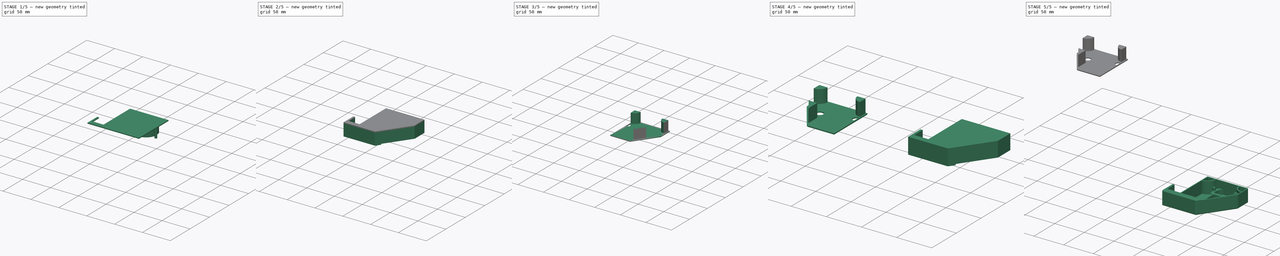
[diagram: build sequence overview — one tinted view per stage of 5, left to right]
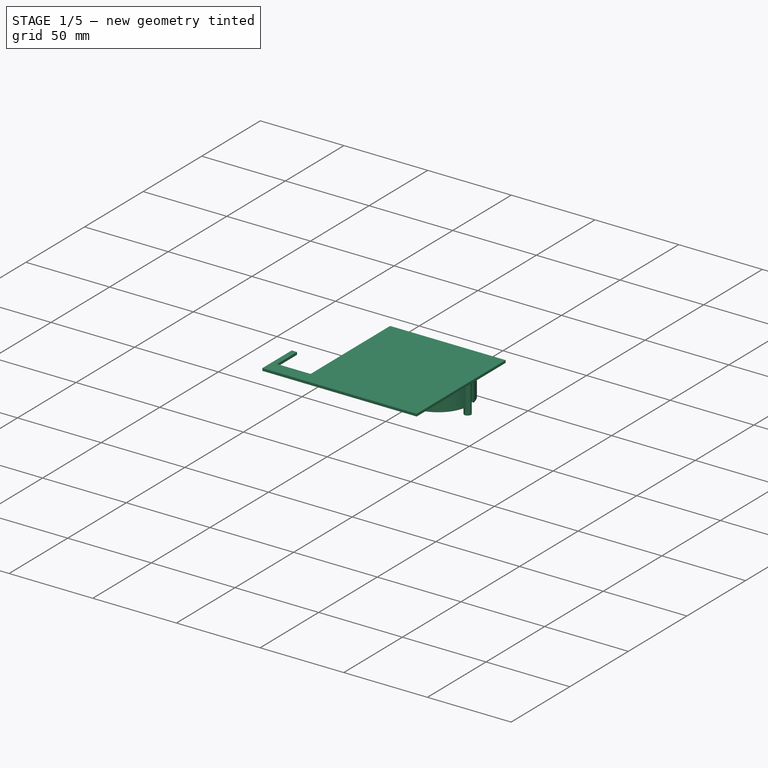
[diagram: stage 1 of 5 — iso view after this stage's code; geometry added in this stage tinted green]
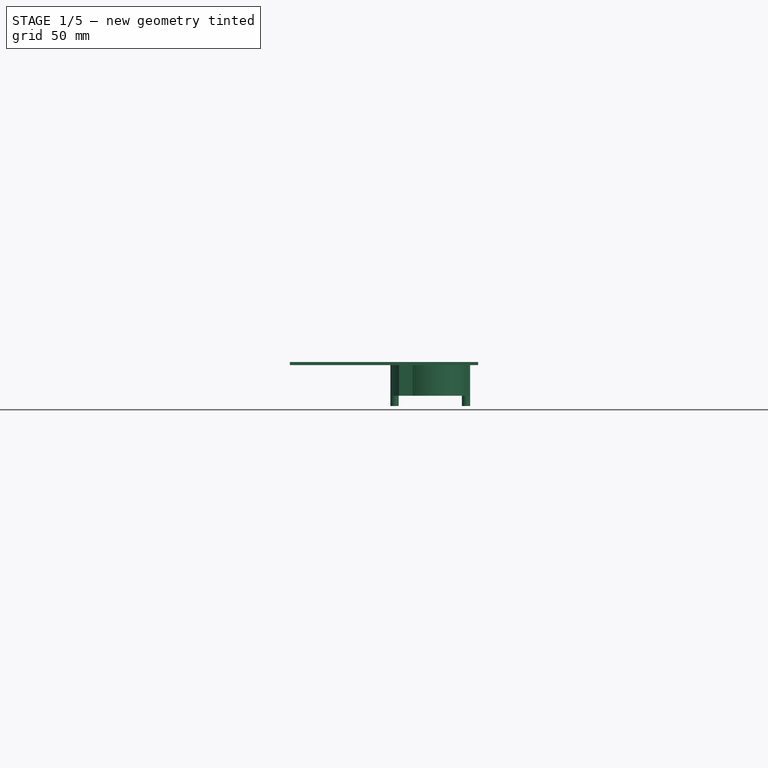
[diagram: stage 1 of 5 — front view after this stage's code; geometry added in this stage tinted green]
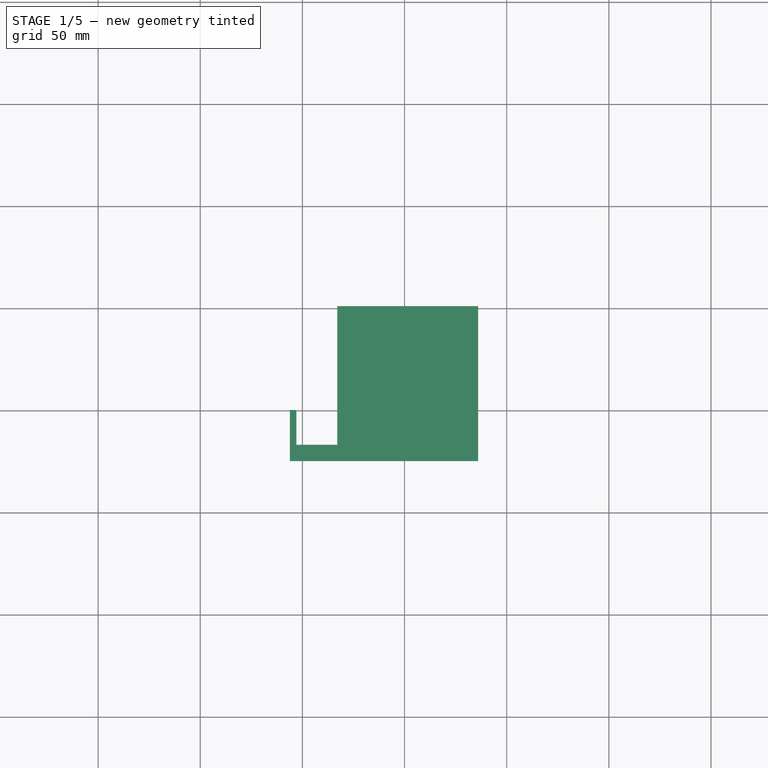
[diagram: stage 1 of 5 — top view after this stage's code; geometry added in this stage tinted green]
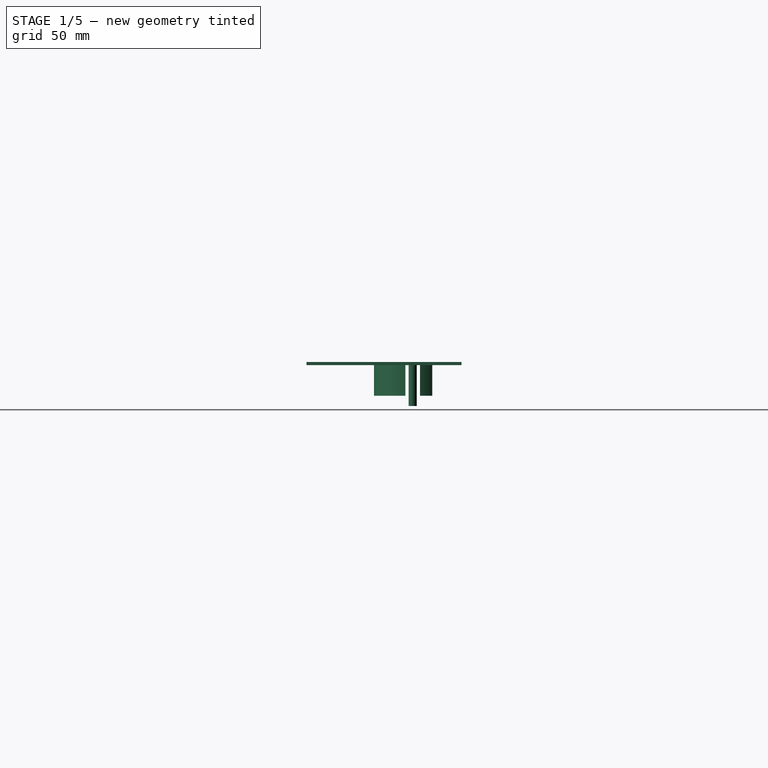
[diagram: stage 1 of 5 — right view after this stage's code; geometry added in this stage tinted green]
FCSTD DOCUMENT  (FreeCAD 0.21R33771 (Git))
Label: uln2003 + 28byj-48 box
License: All rights reserved
LicenseURL: http://en.wikipedia.org/wiki/All_rights_reserved
objects: Sketcher::SketchObject×14, PartDesign::Pad×12, PartDesign::Pocket×4, PartDesign::Chamfer×4, PartDesign::ShapeBinder×2, PartDesign::Body×2, Part::Mirroring×2, PartDesign::Plane×1
note: 61 computed .brp shape members not serialized (recipe doc carries the construction recipe); baked Part::Feature solids carry a one-line shape summary decoded from their .brp

FEATURE [Sketcher::SketchObject] Sketch
  FullyConstrained = false
  MapMode = 5
  Support = -> [XY_Plane]
  sketch-geometry (12):
    g0: LineSegment StartX=47.0355 StartY=0 StartZ=0 EndX=47.0355 EndY=-17 EndZ=0
    g1: LineSegment StartX=47.0355 StartY=-17 StartZ=0 EndX=67.0355 EndY=-17 EndZ=0
    g2: LineSegment StartX=67.0355 StartY=-17 StartZ=0 EndX=67.0355 EndY=50.8746 EndZ=0
    g3: LineSegment StartX=67.0355 StartY=50.8746 StartZ=0 EndX=136.036 EndY=50.8746 EndZ=0
    g4: LineSegment StartX=136.036 StartY=50.8746 StartZ=0 EndX=136.036 EndY=-25 EndZ=0
    g5: LineSegment StartX=136.036 StartY=-25 StartZ=0 EndX=43.8355 EndY=-25 EndZ=0
    g6: LineSegment StartX=43.8355 StartY=-25 StartZ=0 EndX=43.8355 EndY=0 EndZ=0
    g7: LineSegment StartX=43.8355 StartY=0 StartZ=0 EndX=47.0355 EndY=0 EndZ=0
    g8: GeomPoint X=95.0755 Y=27.7746 Z=0
    g9: Circle CenterX=95.0756 CenterY=28.5746 CenterZ=0 NormalX=0 NormalY=0 NormalZ=1 AngleXU=0 Radius=0.8
    g10: GeomPoint X=95.0755 Y=29.3746 Z=0
    g11: LineSegment StartX=95.0755 StartY=29.3746 StartZ=0 EndX=95.0755 EndY=27.7746 EndZ=0
  constraints (32):
    c: PointOnObject(g0,g-1)
    c: Vertical(g0)
    c: Coincident(g0,g1)
    c: Horizontal(g1)
    c: Coincident(g1,g2)
    c: Vertical(g2)
    c: Coincident(g2,g3)
    c: Horizontal(g3)
    c: Coincident(g3,g4)
    c: Vertical(g4)
    c: Coincident(g4,g5)
    c: Horizontal(g5)
    c: Coincident(g5,g6)
    c: PointOnObject(g6,g-1)
    c: Vertical(g6)
    c: Coincident(g6,g7)
    c: Coincident(g7,g0)
    c: Distance(g7) = 3.2
    c: Distance(g0) = 17
    c: Distance(g1) = 20
    c: Distance(g1,g5) = 8
    c: Distance(g3) = 69
    c: Distance(g1,g8) = 52.83
    c: Distance(g8,g2) = 28.04
    c: Diameter(g9) = 1.6
    c: PointOnObject(g8,g9)
    c: PointOnObject(g10,g9)
    c: Vertical(g10,g8)
    c: Coincident(g11,g10)
    c: Coincident(g11,g8)
    c: Distance(g11) = 1.6
    c: Distance(g10,g3) = 21.5
FEATURE [PartDesign::Pad] Pad
  Direction = (0,0,1)
  Length = 1.5
  Length2 = 10
  Profile = -> Sketch
  ReferenceAxis = -> Sketch [N_Axis]
  Type = 0
FEATURE [Sketcher::SketchObject] Sketch002
  ExternalGeometry = -> [Pad]
  FullyConstrained = true
  MapMode = 5
  Placement = pos=(0,0,0) rot=(1,0,0;3.14159rad)
  Support = -> [Pad]
  sketch-geometry (5):
    g0: Circle CenterX=95.0755 CenterY=-26.9746 CenterZ=0 NormalX=0 NormalY=0 NormalZ=1 AngleXU=0 Radius=0.8
    g1: LineSegment StartX=95.0755 StartY=-27.7746 StartZ=0 EndX=95.0755 EndY=-26.1746 EndZ=0
    g2: Circle CenterX=95.0755 CenterY=-26.9746 CenterZ=0 NormalX=0 NormalY=0 NormalZ=1 AngleXU=0 Radius=2
    g3: LineSegment StartX=95.0755 StartY=-26.9746 StartZ=0 EndX=130.076 EndY=-26.9746 EndZ=0
    g4: Circle CenterX=130.076 CenterY=-26.9746 CenterZ=0 NormalX=0 NormalY=0 NormalZ=1 AngleXU=0 Radius=2
  constraints (14):
    c: PointOnObject(g1,g0)
    c: PointOnObject(g1,g0)
    c: PointOnObject(g0,g1)
    c: Vertical(g1)
    c: Diameter(g0) = 1.6
    c: Distance(g-3,g1) = 52.83
    c: Distance(g1,g-4) = 28.04
    c: Coincident(g2,g0)
    c: Diameter(g2) = 4
    c: Coincident(g3,g2)
    c: Distance(g3) = 35
    c: Horizontal(g3)
    c: Coincident(g4,g3)
    c: Equal(g2,g4)
FEATURE [PartDesign::Pad] Pad001
  BaseFeature = -> Pad
  Direction = (0,0,-1)
  Length = 20
  Length2 = 10
  Profile = -> Sketch002
  ReferenceAxis = -> Sketch002 [N_Axis]
  Type = 0
FEATURE [Sketcher::SketchObject] Sketch003
  ExternalGeometry = -> [Pad001]
  FullyConstrained = false
  MapMode = 5
  Placement = pos=(0,0,0) rot=(1,0,0;3.14159rad)
  Support = -> [Pad001]
  sketch-geometry (16):
    g0: ArcOfCircle CenterX=112.576 CenterY=-26.9746 CenterZ=0 NormalX=0 NormalY=0 NormalZ=1 AngleXU=0 Radius=14.075 StartAngle=5.53504 EndAngle=6.02638
    g1: LineSegment StartX=93.9621 StartY=-23.3996 StartZ=0 EndX=98.9621 EndY=-23.3996 EndZ=0
    g2: LineSegment StartX=93.9621 StartY=-30.5496 StartZ=0 EndX=98.9621 EndY=-30.5496 EndZ=0
    g3: GeomPoint X=94.6704 Y=-23.3996 Z=0
    g4: GeomPoint X=95.4807 Y=-30.5496 Z=0
    g5: GeomPoint X=98.9621 Y=-23.3996 Z=0
    g6: LineSegment StartX=95.504 StartY=-36.5496 StartZ=0 EndX=129.54 EndY=-36.5496 EndZ=0
    g7: LineSegment StartX=126.189 StartY=-23.3996 StartZ=0 EndX=131.189 EndY=-23.3996 EndZ=0
    g8: LineSegment StartX=126.189 StartY=-30.5496 StartZ=0 EndX=131.189 EndY=-30.5496 EndZ=0
    g9: ArcOfCircle CenterX=112.576 CenterY=-26.9746 CenterZ=0 NormalX=0 NormalY=0 NormalZ=1 AngleXU=0 Radius=14.075 StartAngle=3.3984 EndAngle=3.88974
    g10: ArcOfCircle CenterX=112.576 CenterY=-26.9746 CenterZ=0 NormalX=0 NormalY=0 NormalZ=1 AngleXU=0 Radius=14.075 StartAngle=0.25681 EndAngle=2.88478
    g11: ArcOfCircle CenterX=112.576 CenterY=-26.9746 CenterZ=0 NormalX=0 NormalY=0 NormalZ=1 AngleXU=0 Radius=18.9536 StartAngle=0.189755 EndAngle=2.95184
    g12: ArcOfCircle CenterX=112.576 CenterY=-26.9746 CenterZ=0 NormalX=0 NormalY=0 NormalZ=1 AngleXU=0 Radius=18.9536 StartAngle=3.33135 EndAngle=3.67118
    g13: ArcOfCircle CenterX=112.576 CenterY=-26.9746 CenterZ=0 NormalX=0 NormalY=0 NormalZ=1 AngleXU=0 Radius=18.9536 StartAngle=5.75359 EndAngle=6.09343
    g14: LineSegment StartX=96.2183 StartY=-36.5496 StartZ=0 EndX=102.259 EndY=-36.5496 EndZ=0
    g15: LineSegment StartX=122.892 StartY=-36.5496 StartZ=0 EndX=128.933 EndY=-36.5496 EndZ=0
  constraints (41):
    c: Diameter(g0) = 28.15
    c: Symmetric(g-3,g-4,g0)
    c: Horizontal(g1)
    c: Horizontal(g2)
    c: Distance(g2,g1) = 7.15
    c: PointOnObject(g3,g1)
    c: Symmetric(g4,g3,g-3)
    c: Symmetric(g2,g7,g0)
    c: Vertical(g1,g2)
    c: PointOnObject(g5,g0)
    c: PointOnObject(g5,g1)
    c: Distance(g5,g1) = 5
    c: Horizontal(g6)
    c: Distance(g8,g6) = 6
    c: PointOnObject(g9,g6)
    c: PointOnObject(g0,g6)
    c: Equal(g0,g9)
    c: Coincident(g10,g1)
    c: Coincident(g9,g2)
    c: Coincident(g0,g9)
    c: Equal(g0,g10)
    c: Coincident(g0,g8)
    c: Coincident(g10,g7)
    c: Coincident(g0,g10)
    c: Horizontal(g8)
    c: Horizontal(g0,g2)
    c: Horizontal(g7)
    c: Equal(g7,g8)
    c: Coincident(g11,g0)
    c: Coincident(g11,g1)
    c: Coincident(g11,g7)
    c: Coincident(g12,g0)
    c: Coincident(g12,g2)
    c: PointOnObject(g12,g6)
    c: Coincident(g13,g0)
    c: Coincident(g13,g8)
    c: PointOnObject(g13,g6)
    c: Coincident(g14,g12)
    c: Coincident(g14,g9)
    c: Coincident(g15,g0)
    c: Coincident(g15,g13)
FEATURE [PartDesign::Pad] Pad002
  BaseFeature = -> Pad001
  Direction = (0,0,-1)
  Length = 15
  Length2 = 10
  Profile = -> Sketch003
  ReferenceAxis = -> Sketch003 [N_Axis]
  Type = 0
FEATURE [Sketcher::SketchObject] Sketch004
  ExternalGeometry = -> [Pad002]
  FullyConstrained = true
  MapMode = 5
  Placement = pos=(0,0,0) rot=(1,0,0;3.14159rad)
  Support = -> [Pad002]
  expr: Constraints[10] = 1.6 mm
  sketch-geometry (9):
    g0: LineSegment StartX=68.6355 StartY=17 StartZ=0 EndX=103.636 EndY=17 EndZ=0
    g1: LineSegment StartX=103.636 StartY=17 StartZ=0 EndX=103.636 EndY=-15.5 EndZ=0
    g2: LineSegment StartX=103.636 StartY=-15.5 StartZ=0 EndX=68.6355 EndY=-15.5 EndZ=0
    g3: LineSegment StartX=68.6355 StartY=-15.5 StartZ=0 EndX=68.6355 EndY=17 EndZ=0
    g4: LineSegment StartX=68.3855 StartY=-15.75 StartZ=0 EndX=68.3855 EndY=17.25 EndZ=0
    g5: LineSegment StartX=68.3855 StartY=17.25 StartZ=0 EndX=103.886 EndY=17.25 EndZ=0
    g6: LineSegment StartX=103.886 StartY=17.25 StartZ=0 EndX=103.886 EndY=-15.75 EndZ=0
    g7: LineSegment StartX=103.886 StartY=-15.75 StartZ=0 EndX=68.3855 EndY=-15.75 EndZ=0
    g8: GeomPoint X=86.1355 Y=0.75 Z=0
  constraints (24):
    c: Coincident(g0,g1)
    c: Coincident(g1,g2)
    c: Coincident(g2,g3)
    c: Coincident(g3,g0)
    c: Horizontal(g0)
    c: Horizontal(g2)
    c: Vertical(g1)
    c: Vertical(g3)
    c: Distance(g0) = 35
    c: Distance(g1) = 32.5
    c: Distance(g2,g-3) = 1.6
    c: Horizontal(g-3,g0)
    c: Coincident(g4,g5)
    c: Coincident(g5,g6)
    c: Coincident(g6,g7)
    c: Coincident(g7,g4)
    c: Horizontal(g5)
    c: Horizontal(g7)
    c: Vertical(g4)
    c: Vertical(g6)
    c: Symmetric(g5,g4,g8)
    c: Symmetric(g0,g2,g8)
    c: Distance(g6) = 33
    c: Distance(g7) = 35.5
FEATURE [PartDesign::Pocket] Pocket
  BaseFeature = -> Pad002
  Direction = (0,0,1)
  Length = 20
  Length2 = 5
  Profile = -> Sketch004
  ReferenceAxis = -> Sketch004 [N_Axis]
  Reversed = true
  Type = 0
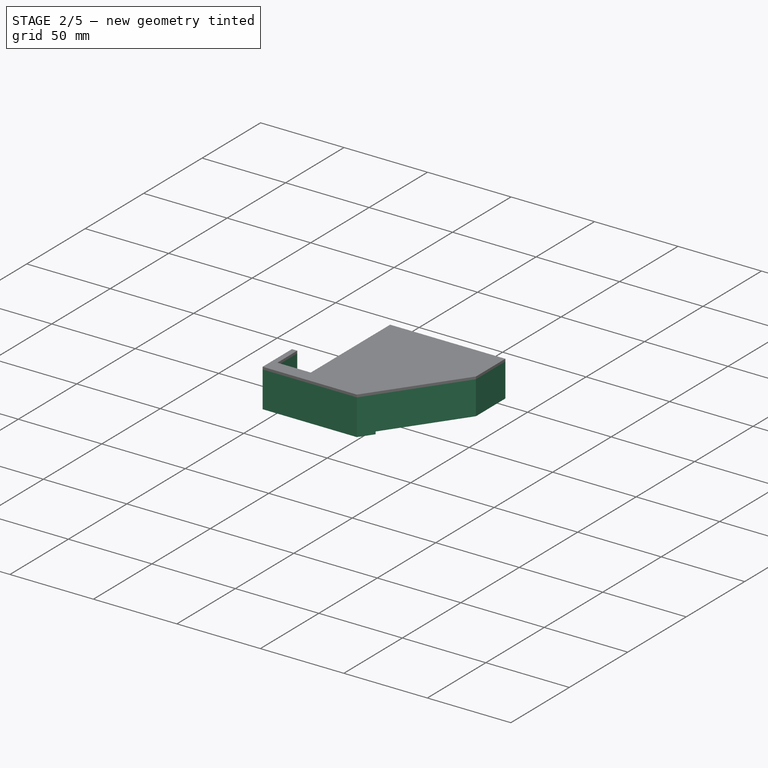
[diagram: stage 2 of 5 — iso view after this stage's code; geometry added in this stage tinted green]
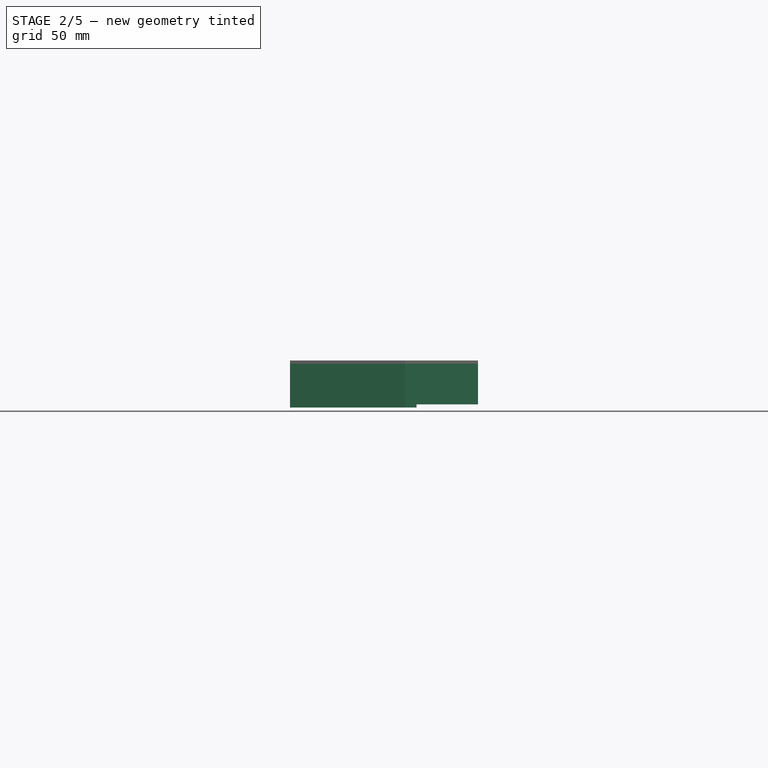
[diagram: stage 2 of 5 — front view after this stage's code; geometry added in this stage tinted green]
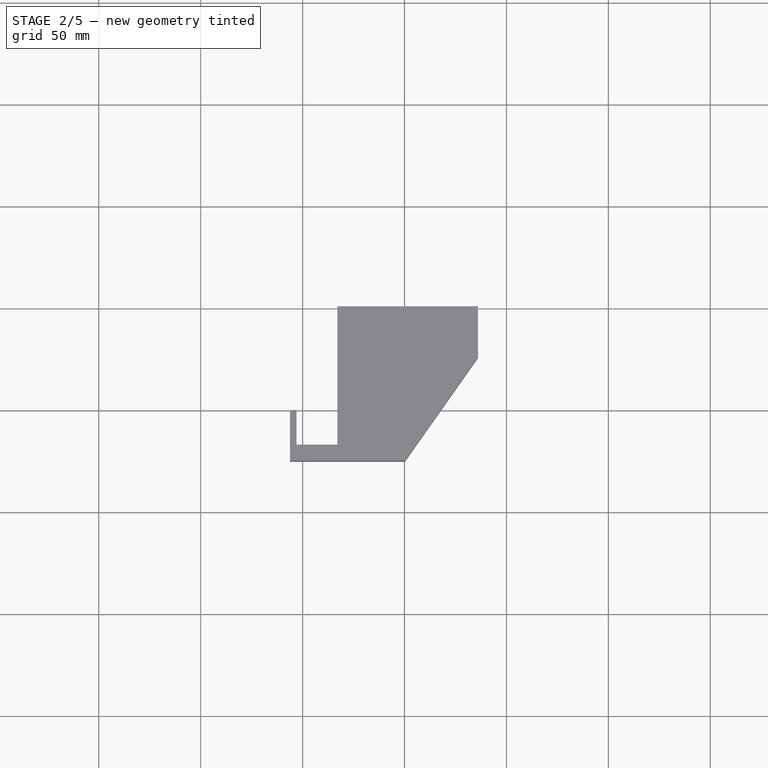
[diagram: stage 2 of 5 — top view after this stage's code; geometry added in this stage tinted green]
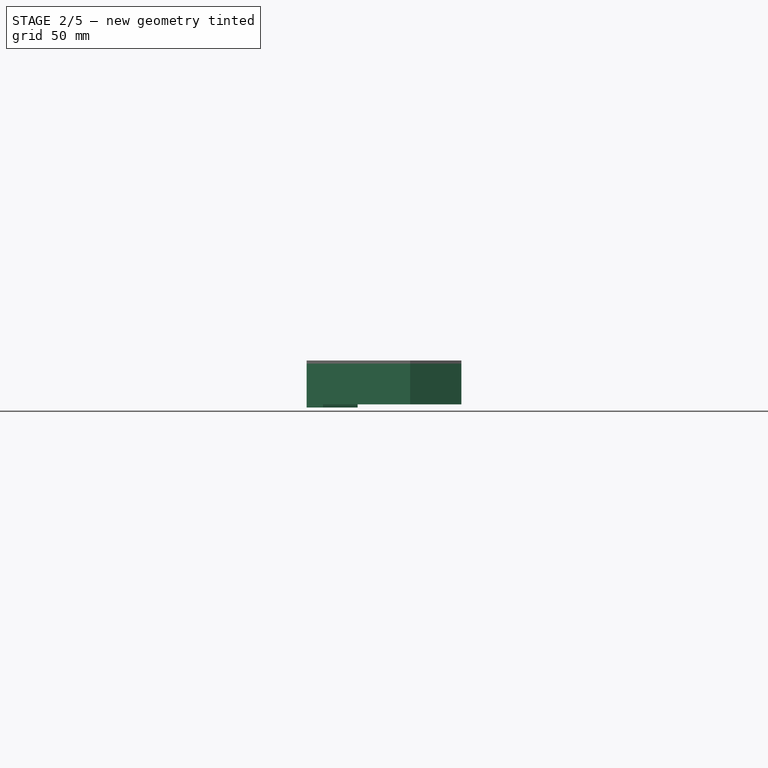
[diagram: stage 2 of 5 — right view after this stage's code; geometry added in this stage tinted green]
FEATURE [Sketcher::SketchObject] Sketch005
  ExternalGeometry = -> [Pocket]
  FullyConstrained = false
  MapMode = 5
  Placement = pos=(0,0,0) rot=(1,0,0;3.14159rad)
  Support = -> [Pocket]
  sketch-geometry (11):
    g0: LineSegment StartX=43.8355 StartY=25 StartZ=0 EndX=43.8355 EndY=0 EndZ=0
    g1: LineSegment StartX=43.8355 StartY=0 StartZ=0 EndX=47.0355 EndY=0 EndZ=0
    g2: LineSegment StartX=47.0355 StartY=0 StartZ=0 EndX=47.0355 EndY=17 EndZ=0
    g3: LineSegment StartX=47.0355 StartY=17 StartZ=0 EndX=67.0355 EndY=17 EndZ=0
    g4: LineSegment StartX=67.0355 StartY=17 StartZ=0 EndX=68.3855 EndY=17.25 EndZ=0
    g5: LineSegment StartX=68.3855 StartY=17.25 StartZ=0 EndX=103.886 EndY=17.25 EndZ=0
    g6: LineSegment StartX=131.989 StartY=-26.3925 StartZ=0 EndX=136.036 EndY=-25.7329 EndZ=0
    g7: LineSegment StartX=100.255 StartY=25 StartZ=0 EndX=136.036 EndY=-25.7329 EndZ=0
    g8: LineSegment StartX=136.036 StartY=-25.7329 StartZ=0 EndX=131.189 EndY=-23.3996 EndZ=0
    g9: LineSegment StartX=131.189 StartY=-23.3996 StartZ=0 EndX=103.886 EndY=17.25 EndZ=0
    g10: LineSegment StartX=43.8355 StartY=25 StartZ=0 EndX=100.255 EndY=25 EndZ=0
  constraints (25):
    c: Coincident(g0,g-3)
    c: Coincident(g0,g1)
    c: Coincident(g1,g-4)
    c: Coincident(g1,g2)
    c: Coincident(g2,g-5)
    c: Coincident(g2,g3)
    c: Coincident(g3,g-5)
    c: Coincident(g3,g4)
    c: Coincident(g4,g-7)
    c: Coincident(g4,g5)
    c: Coincident(g5,g-7)
    c: PointOnObject(g6,g-8)
    c: PointOnObject(g6,g-9)
    c: Distance(g6) = 4.1
    c: PointOnObject(g7,g-11)
    c: Distance(g5,g7) = 1.5
    c: Coincident(g7,g6)
    c: Block(g6)
    c: Coincident(g8,g7)
    c: Coincident(g8,g-10)
    c: Coincident(g9,g8)
    c: Coincident(g9,g5)
    c: Coincident(g10,g0)
    c: Coincident(g10,g7)
    c: Horizontal(g10)
FEATURE [PartDesign::Pad] Pad003
  BaseFeature = -> Pocket
  Direction = (0,0,-1)
  Length = 20
  Length2 = 10
  Profile = -> Sketch005
  ReferenceAxis = -> Sketch005 [N_Axis]
  Type = 0
FEATURE [PartDesign::Pocket] Pocket001
  BaseFeature = -> Pad003
  Direction = (0,0,1)
  Length = 5
  Length2 = 5
  Profile = -> Pad003 [Face22]
  Type = 0
FEATURE [Sketcher::SketchObject] Sketch006
  ExternalGeometry = -> [Pocket001]
  FullyConstrained = true
  MapMode = 5
  Placement = pos=(0,0,0) rot=(1,0,0;3.14159rad)
  Support = -> [Pocket001]
  sketch-geometry (9):
    g0: LineSegment StartX=67.0355 StartY=17 StartZ=0 EndX=67.0355 EndY=-50.8746 EndZ=0
    g1: LineSegment StartX=67.0355 StartY=-50.8746 StartZ=0 EndX=136.036 EndY=-50.8746 EndZ=0
    g2: LineSegment StartX=136.036 StartY=-50.8746 StartZ=0 EndX=136.036 EndY=-25.7329 EndZ=0
    g3: LineSegment StartX=136.036 StartY=-25.7329 StartZ=0 EndX=134.536 EndY=-25.0108 EndZ=0
    g4: LineSegment StartX=134.536 StartY=-25.0108 StartZ=0 EndX=134.536 EndY=-49.3746 EndZ=0
    g5: LineSegment StartX=134.536 StartY=-49.3746 StartZ=0 EndX=68.5355 EndY=-49.3746 EndZ=0
    g6: LineSegment StartX=68.5355 StartY=-49.3746 StartZ=0 EndX=68.5355 EndY=17.25 EndZ=0
    g7: LineSegment StartX=68.5355 StartY=17.25 StartZ=0 EndX=68.3855 EndY=17.25 EndZ=0
    g8: LineSegment StartX=67.0355 StartY=17 StartZ=0 EndX=68.3855 EndY=17.25 EndZ=0
  constraints (22):
    c: Coincident(g-4,g0)
    c: Coincident(g0,g-4)
    c: Coincident(g0,g1)
    c: Coincident(g1,g-3)
    c: Coincident(g1,g2)
    c: Coincident(g2,g-3)
    c: Coincident(g2,g3)
    c: PointOnObject(g3,g-5)
    c: Coincident(g3,g4)
    c: Vertical(g4)
    c: Coincident(g4,g5)
    c: Horizontal(g5)
    c: Coincident(g5,g6)
    c: Vertical(g6)
    c: PointOnObject(g6,g-6)
    c: Coincident(g6,g7)
    c: Coincident(g7,g-7)
    c: Coincident(g8,g0)
    c: Coincident(g8,g7)
    c: Distance(g5,g0) = 1.5
    c: Distance(g4,g1) = 1.5
    c: Distance(g4,g2) = 1.5
FEATURE [PartDesign::Pad] Pad004
  BaseFeature = -> Pocket001
  Direction = (0,0,-1)
  Length = 20
  Length2 = 10
  Profile = -> Sketch006
  ReferenceAxis = -> Sketch006 [N_Axis]
  Type = 0
FEATURE [Sketcher::SketchObject] Sketch007
  ExternalGeometry = -> [Pad004]
  FullyConstrained = true
  MapMode = 5
  Placement = pos=(0,0,-20) rot=(1,0,0;3.14159rad)
  Support = -> [Pad004]
  sketch-geometry (6):
    g0: LineSegment StartX=43.8355 StartY=25 StartZ=0 EndX=43.8355 EndY=0 EndZ=0
    g1: LineSegment StartX=43.8355 StartY=0 StartZ=0 EndX=47.0355 EndY=0 EndZ=0
    g2: LineSegment StartX=47.0355 StartY=0 StartZ=0 EndX=47.0355 EndY=17 EndZ=0
    g3: LineSegment StartX=47.0355 StartY=17 StartZ=0 EndX=105.897 EndY=17 EndZ=0
    g4: LineSegment StartX=105.897 StartY=17 StartZ=0 EndX=100.255 EndY=25 EndZ=0
    g5: LineSegment StartX=100.255 StartY=25 StartZ=0 EndX=43.8355 EndY=25 EndZ=0
  constraints (13):
    c: Coincident(g-3,g0)
    c: Coincident(g0,g-4)
    c: Coincident(g0,g1)
    c: Coincident(g1,g-4)
    c: Coincident(g1,g2)
    c: Coincident(g2,g-5)
    c: Coincident(g2,g3)
    c: PointOnObject(g3,g-6)
    c: Horizontal(g3)
    c: Coincident(g3,g4)
    c: Coincident(g4,g-6)
    c: Coincident(g4,g5)
    c: Coincident(g5,g0)
FEATURE [PartDesign::Pad] Pad005
  BaseFeature = -> Pad004
  Direction = (0,0,-1)
  Length = 1.5
  Length2 = 10
  Profile = -> Sketch007
  ReferenceAxis = -> Sketch007 [N_Axis]
  Type = 0
FEATURE [PartDesign::Chamfer] Chamfer
  Angle = 45
  Base = -> Pad005 [Edge67]
  BaseFeature = -> Pad005
  ChamferType = 0
  FlipDirection = false
  Size = 0.24
  Size2 = 1
  SupportTransform = false
  UseAllEdges = false
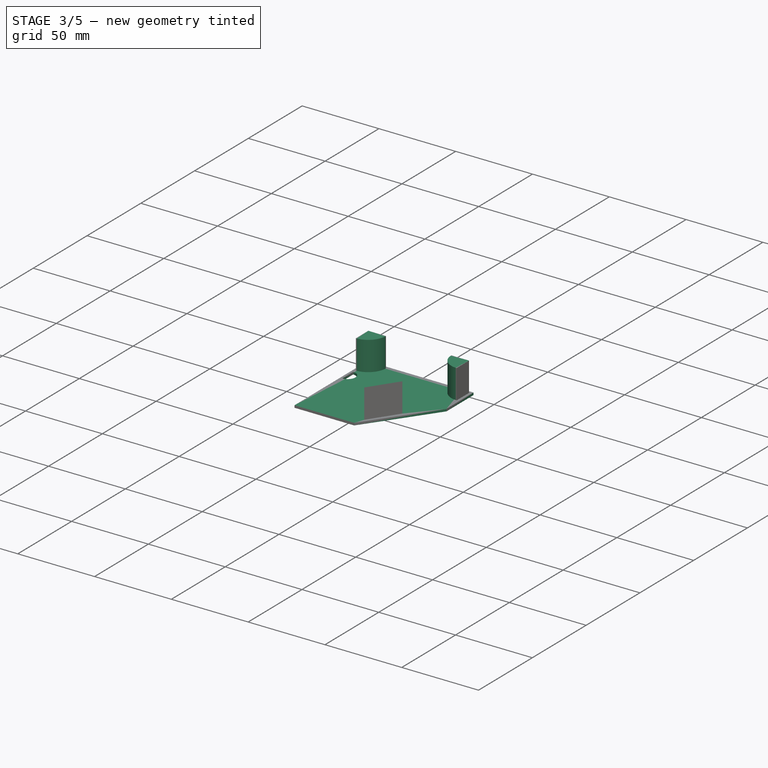
[diagram: stage 3 of 5 — iso view after this stage's code; geometry added in this stage tinted green]
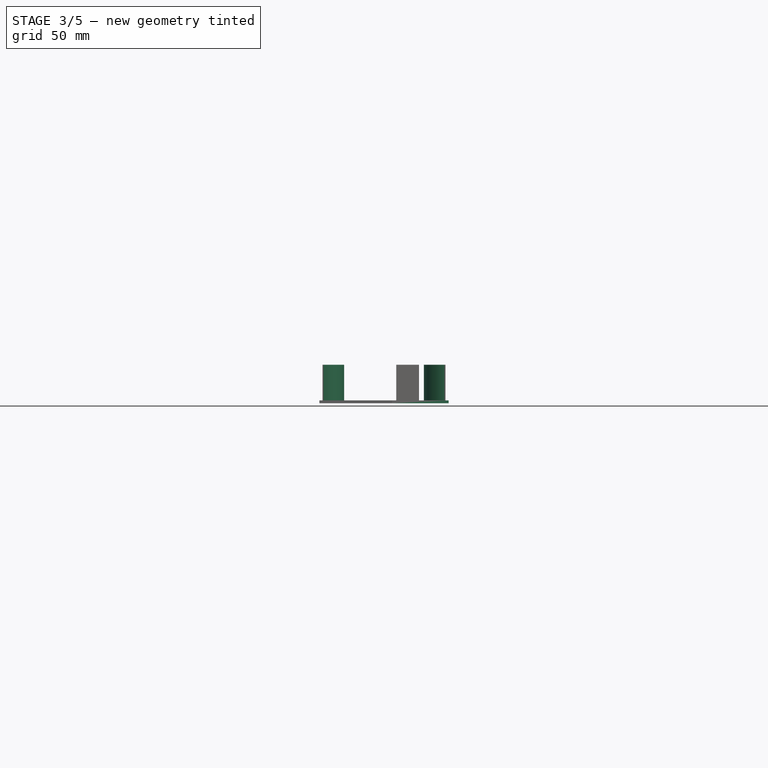
[diagram: stage 3 of 5 — front view after this stage's code; geometry added in this stage tinted green]
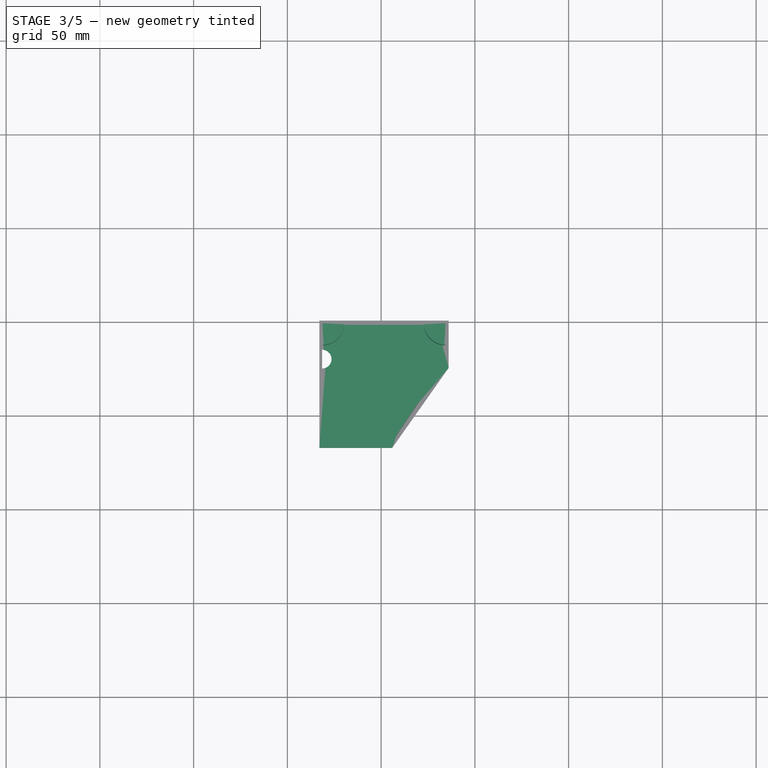
[diagram: stage 3 of 5 — top view after this stage's code; geometry added in this stage tinted green]
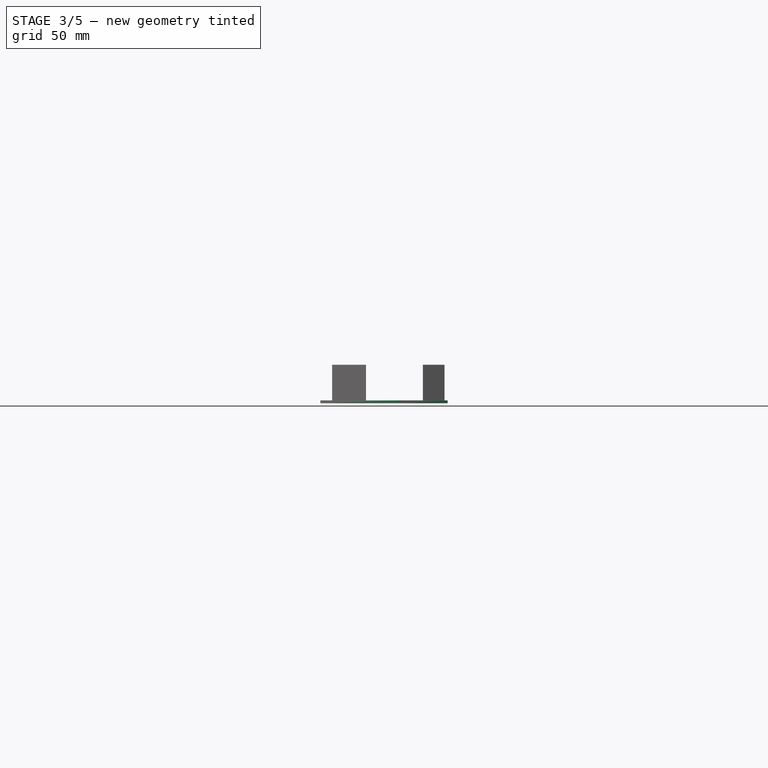
[diagram: stage 3 of 5 — right view after this stage's code; geometry added in this stage tinted green]
FEATURE [Sketcher::SketchObject] Sketch008
  ExternalGeometry = -> [Chamfer]
  FullyConstrained = false
  MapMode = 5
  Placement = pos=(0,0,0) rot=(1,0,0;3.14159rad)
  Support = -> [Chamfer]
  sketch-geometry (16):
    g0: ArcOfCircle CenterX=134.536 CenterY=-49.3746 CenterZ=0 NormalX=0 NormalY=0 NormalZ=1 AngleXU=0 Radius=14 StartAngle=1.5708 EndAngle=3.14159
    g1: ArcOfCircle CenterX=134.536 CenterY=-49.3746 CenterZ=0 NormalX=0 NormalY=0 NormalZ=1 AngleXU=0 Radius=12 StartAngle=1.5708 EndAngle=3.14159
    g2: LineSegment StartX=120.536 StartY=-49.3746 StartZ=0 EndX=122.536 EndY=-49.3746 EndZ=0
    g3: LineSegment StartX=134.536 StartY=-35.3746 StartZ=0 EndX=134.536 EndY=-37.3746 EndZ=0
    g4: LineSegment StartX=107.84 StartY=11.5186 StartZ=0 EndX=121.301 EndY=-7.56699 EndZ=0
    g5: LineSegment StartX=121.301 StartY=-7.56699 StartZ=0 EndX=107.84 EndY=-7.56699 EndZ=0
    g6: LineSegment StartX=107.84 StartY=-7.56699 StartZ=0 EndX=107.84 EndY=11.5186 EndZ=0
    g7: LineSegment StartX=105.84 StartY=15.6488 StartZ=0 EndX=125.466 EndY=-12.1782 EndZ=0
    g8: LineSegment StartX=105.84 StartY=-12.1782 StartZ=0 EndX=105.84 EndY=15.6488 EndZ=0
    g9: LineSegment StartX=125.466 StartY=-12.1782 StartZ=0 EndX=105.84 EndY=-12.1782 EndZ=0
    g10: GeomPoint X=101.536 Y=-49.3746 Z=0
    g11: LineSegment StartX=101.536 StartY=-49.3746 StartZ=0 EndX=101.536 EndY=-34.7622 EndZ=0
    g12: ArcOfCircle CenterX=68.5355 CenterY=-49.3746 CenterZ=0 NormalX=0 NormalY=0 NormalZ=1 AngleXU=0 Radius=14 StartAngle=-9e-16 EndAngle=1.5708
    g13: ArcOfCircle CenterX=68.5355 CenterY=-49.3746 CenterZ=0 NormalX=0 NormalY=0 NormalZ=1 AngleXU=0 Radius=12 StartAngle=-9e-16 EndAngle=1.5708
    g14: LineSegment StartX=82.5355 StartY=-49.3746 StartZ=0 EndX=80.5355 EndY=-49.3746 EndZ=0
    g15: LineSegment StartX=68.5355 StartY=-35.3746 StartZ=0 EndX=68.5355 EndY=-37.3746 EndZ=0
  constraints (37):
    c: Coincident(g0,g-6)
    c: PointOnObject(g0,g-6)
    c: PointOnObject(g0,g-3)
    c: Radius(g0) = 14
    c: Coincident(g1,g0)
    c: PointOnObject(g1,g-6)
    c: PointOnObject(g1,g-3)
    c: Coincident(g2,g0)
    c: Coincident(g2,g1)
    c: Coincident(g3,g0)
    c: Coincident(g3,g1)
    c: Distance(g3) = 2
    c: Coincident(g4,g5)
    c: Horizontal(g5)
    c: Coincident(g5,g6)
    c: Vertical(g6)
    c: Coincident(g4,g6)
    c: Coincident(g7,g9)
    c: Horizontal(g9)
    c: Coincident(g9,g8)
    c: Vertical(g8)
    c: Coincident(g7,g8)
    c: Distance(g5,g8) = 2
    c: Symmetric(g-6,g0,g10)
    c: Coincident(g11,g10)
    c: Perpendicular(g-6,g11)
    c: Radius(g12) = 14
    c: Coincident(g13,g12)
    c: Coincident(g14,g12)
    c: Coincident(g14,g13)
    c: Coincident(g15,g12)
    c: Coincident(g15,g13)
    c: Distance(g15) = 2
    c: Block(g12)
    c: Block(g13)
    c: Parallel(g4,g7)
    c: Parallel(g7,g-7)
FEATURE [PartDesign::Pad] Pad006
  BaseFeature = -> Chamfer
  Direction = (0,0,-1)
  Length = 20
  Length2 = 10
  Profile = -> Sketch008
  ReferenceAxis = -> Sketch008 [N_Axis]
  Type = 0
FEATURE [PartDesign::ShapeBinder] ShapeBinder
  Support = -> [Pad006]
  TraceSupport = false
FEATURE [PartDesign::Plane] DatumPlane
  AttachmentOffset = pos=(0,0,-20) rot=(0,0,1;0rad)
  Length = 183.143
  MapMode = 2
  Placement = pos=(0,0,-20) rot=(0,0,1;0rad)
  ResizeMode = 0
  Support = -> [ShapeBinder]
  Width = 97.9821
FEATURE [Sketcher::SketchObject] Sketch009
  ExternalGeometry = -> [ShapeBinder]
  FullyConstrained = true
  MapMode = 5
  Placement = pos=(0,0,-20) rot=(0,0,1;0rad)
  Support = -> [DatumPlane]
  sketch-geometry (5):
    g0: LineSegment StartX=67.0355 StartY=-17 StartZ=0 EndX=105.897 EndY=-17 EndZ=0
    g1: LineSegment StartX=105.897 StartY=-17 StartZ=0 EndX=136.036 EndY=25.7329 EndZ=0
    g2: LineSegment StartX=136.036 StartY=25.7329 StartZ=0 EndX=136.036 EndY=50.8746 EndZ=0
    g3: LineSegment StartX=136.036 StartY=50.8746 StartZ=0 EndX=67.0355 EndY=50.8746 EndZ=0
    g4: LineSegment StartX=67.0355 StartY=50.8746 StartZ=0 EndX=67.0355 EndY=-17 EndZ=0
  constraints (10):
    c: Coincident(g-3,g0)
    c: Coincident(g0,g-4)
    c: Coincident(g0,g1)
    c: Coincident(g1,g-5)
    c: Coincident(g1,g2)
    c: Coincident(g2,g-6)
    c: Coincident(g2,g3)
    c: Coincident(g3,g-6)
    c: Coincident(g3,g4)
    c: Coincident(g4,g0)
FEATURE [PartDesign::Pad] Pad007
  Direction = (0,0,1)
  Length = 1.5
  Length2 = 10
  Placement = pos=(0,0,-20) rot=(0,0,1;0rad)
  Profile = -> Sketch009
  ReferenceAxis = -> Sketch009 [N_Axis]
  Reversed = true
  Type = 0
FEATURE [Sketcher::SketchObject] Sketch010
  ExternalGeometry = -> [ShapeBinder]
  FullyConstrained = false
  MapMode = 5
  Placement = pos=(0,0,-20) rot=(0,0,1;0rad)
  Support = -> [Pad007]
  sketch-geometry (15):
    g0: ArcOfCircle CenterX=134.336 CenterY=49.1746 CenterZ=0 NormalX=0 NormalY=0 NormalZ=1 AngleXU=0 Radius=11.5172 StartAngle=3.14159 EndAngle=4.71239
    g1: LineSegment StartX=122.818 StartY=49.1746 StartZ=0 EndX=134.336 EndY=49.1746 EndZ=0
    g2: LineSegment StartX=134.336 StartY=49.1746 StartZ=0 EndX=134.336 EndY=37.6575 EndZ=0
    g3: LineSegment StartX=134.336 StartY=49.1746 StartZ=0 EndX=126.05 EndY=40.8893 EndZ=0
    g4: GeomPoint X=126.192 Y=41.0308 Z=0
    g5: LineSegment StartX=101.536 StartY=49.3746 StartZ=0 EndX=101.536 EndY=43.954 EndZ=0
    g6: LineSegment StartX=108.04 StartY=7.36699 StartZ=0 EndX=108.04 EndY=-10.7058 EndZ=0
    g7: LineSegment StartX=108.04 StartY=-10.7058 StartZ=0 EndX=120.179 EndY=7.36699 EndZ=0
    g8: LineSegment StartX=120.179 StartY=7.36699 StartZ=0 EndX=108.04 EndY=7.36699 EndZ=0
    g9: LineSegment StartX=120.555 StartY=7.56699 StartZ=0 EndX=107.84 EndY=-11.3623 EndZ=0
    g10: ArcOfCircle CenterX=68.7355 CenterY=49.1746 CenterZ=0 NormalX=0 NormalY=0 NormalZ=1 AngleXU=0 Radius=11.5172 StartAngle=4.71239 EndAngle=6.28319
    g11: LineSegment StartX=80.2527 StartY=49.1746 StartZ=0 EndX=68.7355 EndY=49.1746 EndZ=0
    g12: LineSegment StartX=68.7355 StartY=49.1746 StartZ=0 EndX=68.7355 EndY=37.6575 EndZ=0
    g13: LineSegment StartX=68.7355 StartY=49.1746 StartZ=0 EndX=77.0208 EndY=40.8893 EndZ=0
    g14: GeomPoint X=76.8794 Y=41.0308 Z=0
  constraints (37):
    c: Coincident(g1,g0)
    c: Coincident(g1,g0)
    c: Horizontal(g1)
    c: Coincident(g2,g0)
    c: Coincident(g2,g0)
    c: Vertical(g2)
    c: Distance(g0,g-4) = 0.2
    c: Distance(g0,g-3) = 0.2
    c: Coincident(g3,g0)
    c: PointOnObject(g3,g-5)
    c: Angle(g1,g3) = 0.785398
    c: PointOnObject(g4,g0)
    c: PointOnObject(g4,g3)
    c: Distance(g4,g3) = 0.2
    c: Vertical(g5)
    c: Vertical(g6)
    c: Coincident(g6,g7)
    c: Coincident(g7,g8)
    c: Coincident(g8,g6)
    c: Horizontal(g8)
    c: Distance(g6,g-6) = 0.2
    c: Distance(g6,g-7) = 0.2
    c: Coincident(g9,g-6)
    c: Coincident(g9,g-7)
    c: Parallel(g7,g9)
    c: Distance(g7,g9) = 0.2
    c: Coincident(g11,g10)
    c: Coincident(g11,g10)
    c: Horizontal(g11)
    c: Coincident(g12,g10)
    c: Coincident(g12,g10)
    c: Vertical(g12)
    c: Coincident(g13,g10)
    c: Angle(g11,g13) = -0.785398
    c: PointOnObject(g14,g10)
    c: PointOnObject(g14,g13)
    c: Distance(g14,g13) = 0.2
FEATURE [PartDesign::Pad] Pad008
  BaseFeature = -> Pad007
  Direction = (0,0,1)
  Length = 19
  Length2 = 10
  Placement = pos=(0,0,-20) rot=(0,0,1;0rad)
  Profile = -> Sketch010
  ReferenceAxis = -> Sketch010 [N_Axis]
  Type = 0
FEATURE [Sketcher::SketchObject] Sketch011
  ExternalGeometry = -> [ShapeBinder]
  FullyConstrained = true
  MapMode = 5
  Placement = pos=(0,0,-21.5) rot=(1,0,0;3.14159rad)
  Support = -> [Pad008]
  sketch-geometry (3):
    g0: ArcOfCircle CenterX=68.5355 CenterY=-30.3746 CenterZ=0 NormalX=0 NormalY=0 NormalZ=1 AngleXU=0 Radius=5 StartAngle=4.71239 EndAngle=7.85398
    g1: LineSegment StartX=68.5355 StartY=-25.3746 StartZ=0 EndX=68.5355 EndY=-35.3746 EndZ=0
    g2: GeomPoint X=73.5355 Y=-30.3746 Z=0
  constraints (8):
    c: PointOnObject(g0,g-4)
    c: PointOnObject(g0,g-4)
    c: Coincident(g0,g-4)
    c: Coincident(g1,g0)
    c: Coincident(g1,g0)
    c: PointOnObject(g2,g0)
    c: Horizontal(g2,g0)
    c: Distance(g2,g0) = 5
FEATURE [PartDesign::Pocket] Pocket002
  BaseFeature = -> Pad008
  Direction = (0,0,1)
  Length = 5
  Length2 = 5
  Placement = pos=(0,0,-20) rot=(0,0,1;0rad)
  Profile = -> Sketch011
  ReferenceAxis = -> Sketch011 [N_Axis]
  Type = 0
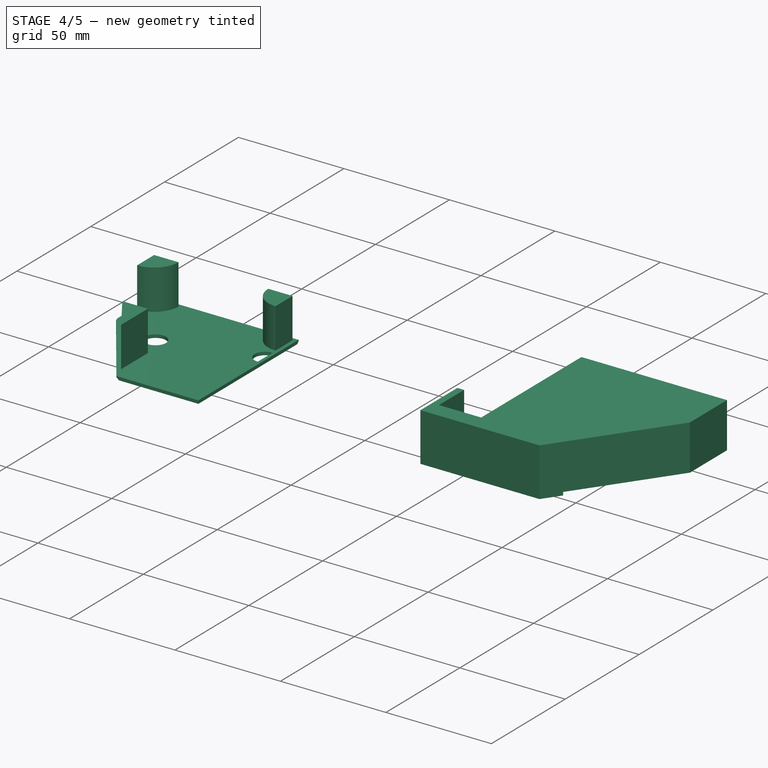
[diagram: stage 4 of 5 — iso view after this stage's code; geometry added in this stage tinted green]
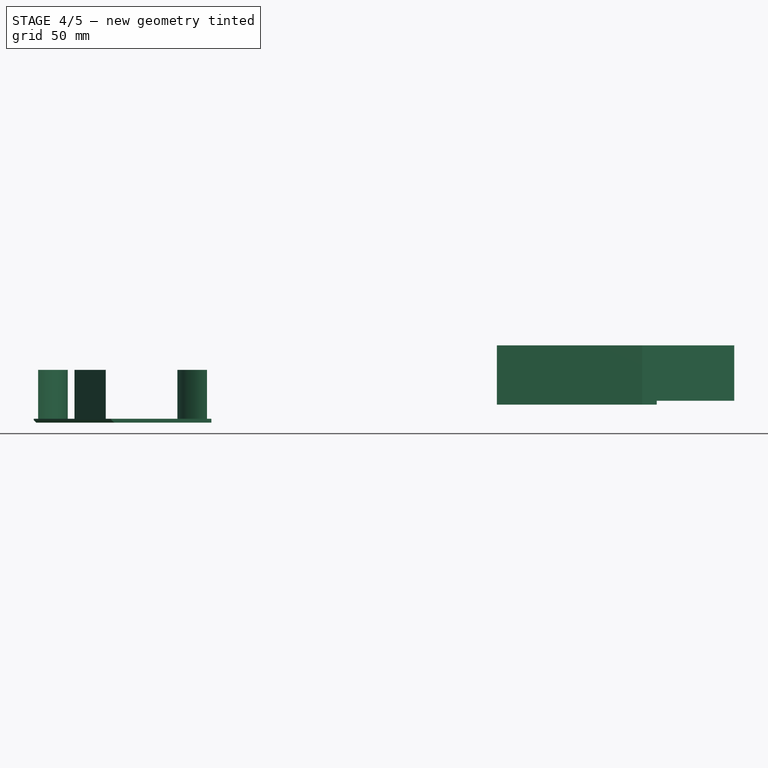
[diagram: stage 4 of 5 — front view after this stage's code; geometry added in this stage tinted green]
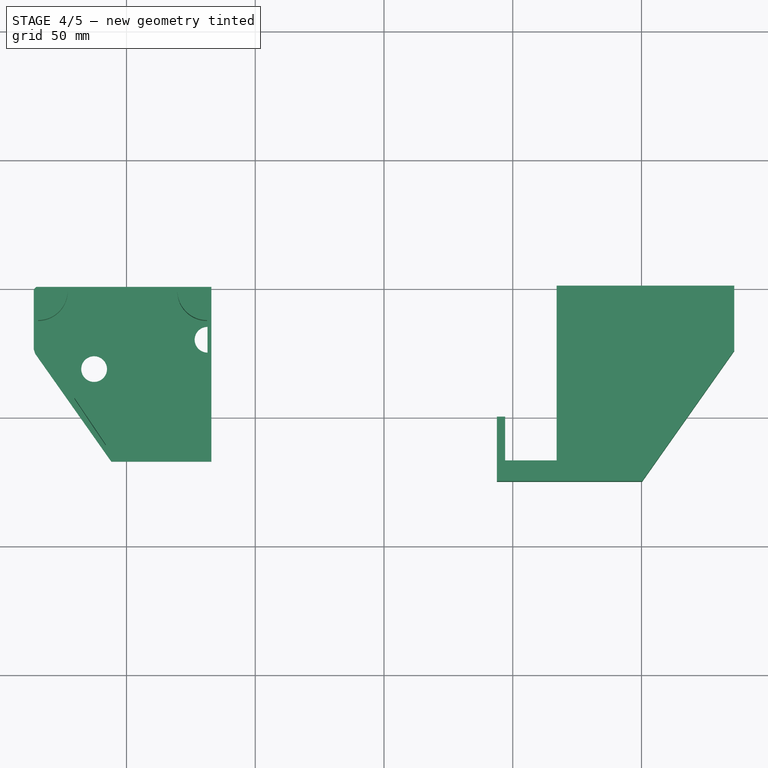
[diagram: stage 4 of 5 — top view after this stage's code; geometry added in this stage tinted green]
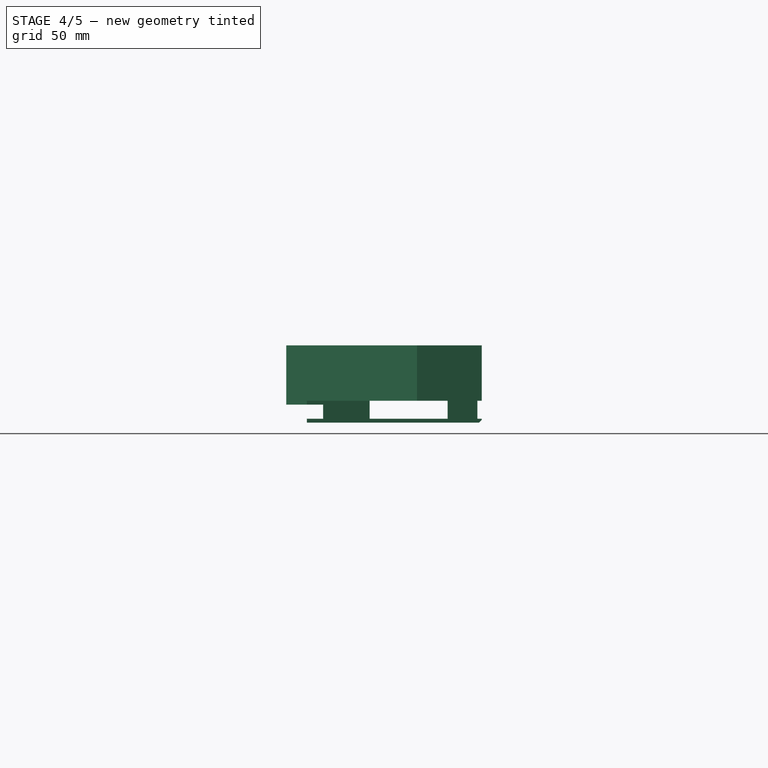
[diagram: stage 4 of 5 — right view after this stage's code; geometry added in this stage tinted green]
FEATURE [PartDesign::ShapeBinder] ShapeBinder001
  Support = -> [Pad006]
  TraceSupport = false
FEATURE [Sketcher::SketchObject] Sketch012
  ExternalGeometry = -> [ShapeBinder001]
  FullyConstrained = true
  MapMode = 5
  Placement = pos=(0,0,-20) rot=(0,0,1;0rad)
  Support = -> [Pocket002]
  sketch-geometry (2):
    g0: LineSegment StartX=112.576 StartY=18.9746 StartZ=0 EndX=112.576 EndY=26.9746 EndZ=0
    g1: Circle CenterX=112.576 CenterY=18.9746 CenterZ=0 NormalX=0 NormalY=0 NormalZ=1 AngleXU=0 Radius=5
  constraints (5):
    c: Vertical(g0)
    c: Symmetric(g-3,g-4,g0)
    c: Distance(g0) = 8
    c: Coincident(g1,g0)
    c: Diameter(g1) = 10
FEATURE [PartDesign::Pocket] Pocket003
  BaseFeature = -> Pocket002
  Direction = (0,0,-1)
  Length = 5
  Length2 = 5
  Placement = pos=(0,0,-20) rot=(0,0,1;0rad)
  Profile = -> Sketch012
  ReferenceAxis = -> Sketch012 [N_Axis]
  Type = 0
FEATURE [Sketcher::SketchObject] Sketch013
  ExternalGeometry = -> [Pad006]
  FullyConstrained = false
  MapMode = 5
  Placement = pos=(0,0,0) rot=(1,0,0;3.14159rad)
  Support = -> [Pad006]
  sketch-geometry (8):
    g0: ArcOfCircle CenterX=112.576 CenterY=-26.9746 CenterZ=0 NormalX=0 NormalY=0 NormalZ=1 AngleXU=0 Radius=14.075 StartAngle=6.02638 EndAngle=6.54
    g1: ArcOfCircle CenterX=112.576 CenterY=-26.9746 CenterZ=0 NormalX=0 NormalY=0 NormalZ=1 AngleXU=0 Radius=18.9536 StartAngle=6.09343 EndAngle=6.47294
    g2: LineSegment StartX=126.189 StartY=-23.3996 StartZ=0 EndX=131.189 EndY=-23.3996 EndZ=0
    g3: LineSegment StartX=131.189 StartY=-30.5496 StartZ=0 EndX=126.189 EndY=-30.5496 EndZ=0
    g4: ArcOfCircle CenterX=112.576 CenterY=-26.9746 CenterZ=0 NormalX=0 NormalY=0 NormalZ=1 AngleXU=0 Radius=14.075 StartAngle=2.88478 EndAngle=3.3984
    g5: ArcOfCircle CenterX=112.576 CenterY=-26.9746 CenterZ=0 NormalX=0 NormalY=0 NormalZ=1 AngleXU=0 Radius=18.9536 StartAngle=2.95184 EndAngle=3.33135
    g6: LineSegment StartX=98.9621 StartY=-30.5496 StartZ=0 EndX=93.9621 EndY=-30.5496 EndZ=0
    g7: LineSegment StartX=93.9621 StartY=-23.3996 StartZ=0 EndX=98.9621 EndY=-23.3996 EndZ=0
  constraints (15):
    c: Coincident(g0,g-5)
    c: Coincident(g0,g-5)
    c: Coincident(g1,g0)
    c: Coincident(g1,g-3)
    c: Coincident(g2,g0)
    c: Coincident(g2,g1)
    c: Coincident(g3,g1)
    c: Coincident(g3,g0)
    c: Horizontal(g3)
    c: Coincident(g5,g4)
    c: Coincident(g6,g4)
    c: Coincident(g6,g5)
    c: Coincident(g7,g5)
    c: Coincident(g7,g4)
    c: Horizontal(g7)
FEATURE [PartDesign::Pad] Pad009
  BaseFeature = -> Pad006
  Direction = (0,0,-1)
  Length = 15
  Length2 = 10
  Profile = -> Sketch013
  ReferenceAxis = -> Sketch013 [N_Axis]
  Type = 0
FEATURE [PartDesign::Pad] Pad010
  BaseFeature = -> Pad009
  Direction = (0,0,-1)
  Length = 15
  Length2 = 10
  Profile = -> Pad009 [Face57]
  Type = 0
FEATURE [PartDesign::Chamfer] Chamfer003
  Angle = 45
  Base = -> Pocket003 [Edge10,Edge8,Edge26,Edge30,Edge25]
  BaseFeature = -> Pocket003
  ChamferType = 0
  FlipDirection = false
  Placement = pos=(0,0,-20) rot=(0,0,1;0rad)
  Size = 1
  Size2 = 1
  SupportTransform = false
  UseAllEdges = false
FEATURE [Part::Mirroring] Part__Mirroring001  label="przykrywka (Mirror #2)"
  Base = (0,0,0)
  Normal = (1,0,0)
  Source = -> Body001
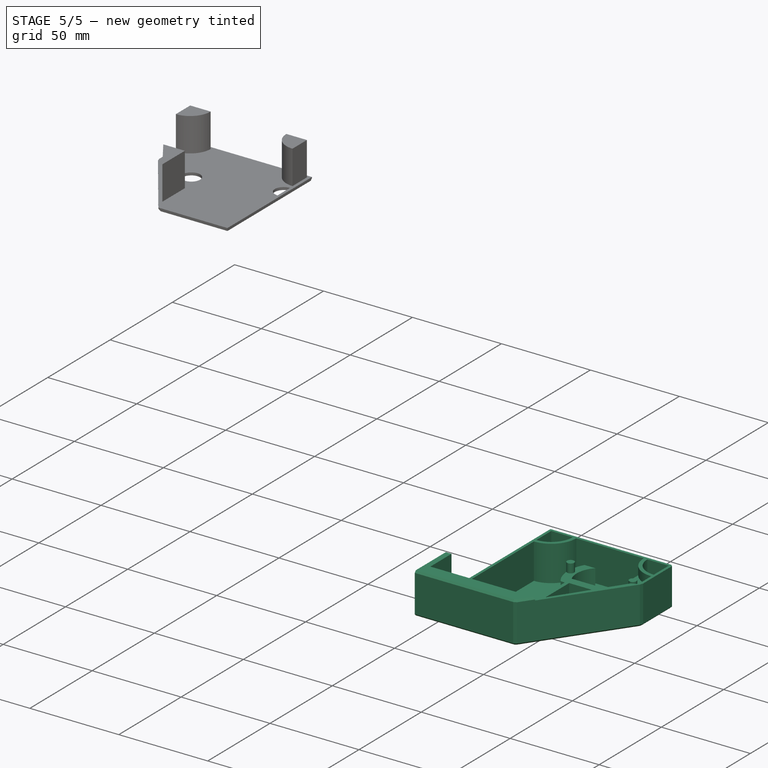
[diagram: stage 5 of 5 — iso view after this stage's code; geometry added in this stage tinted green]
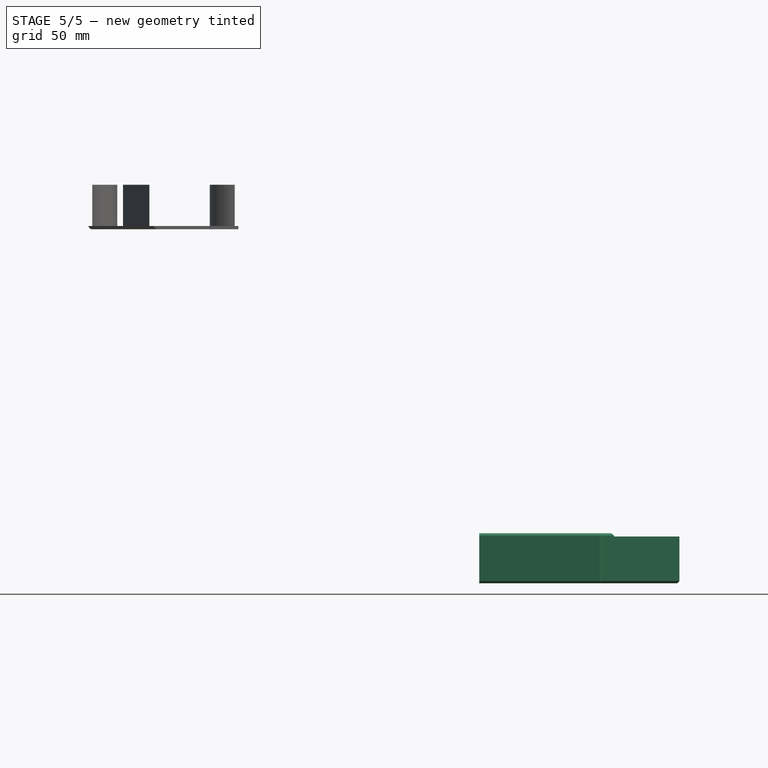
[diagram: stage 5 of 5 — front view after this stage's code; geometry added in this stage tinted green]
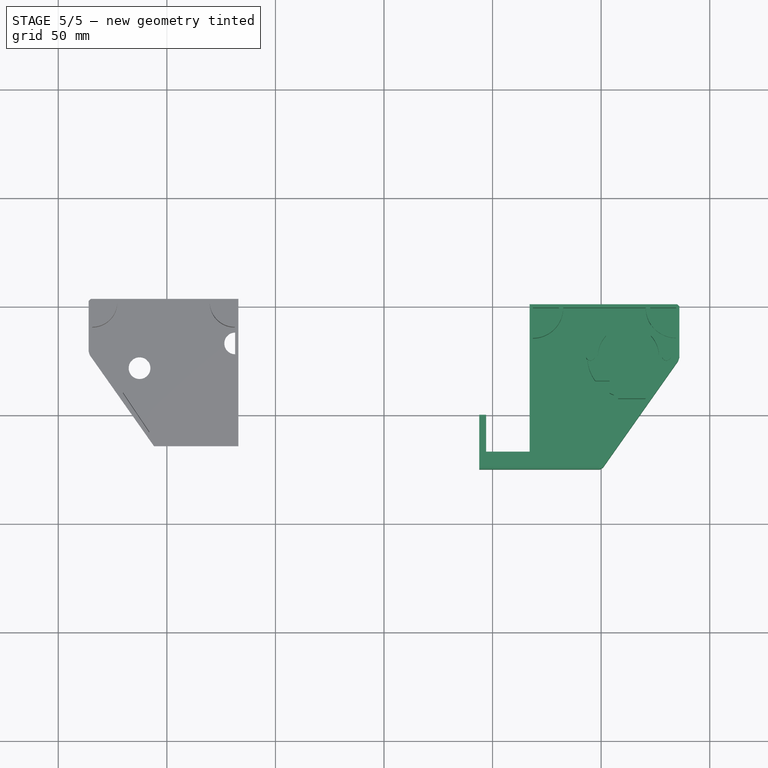
[diagram: stage 5 of 5 — top view after this stage's code; geometry added in this stage tinted green]
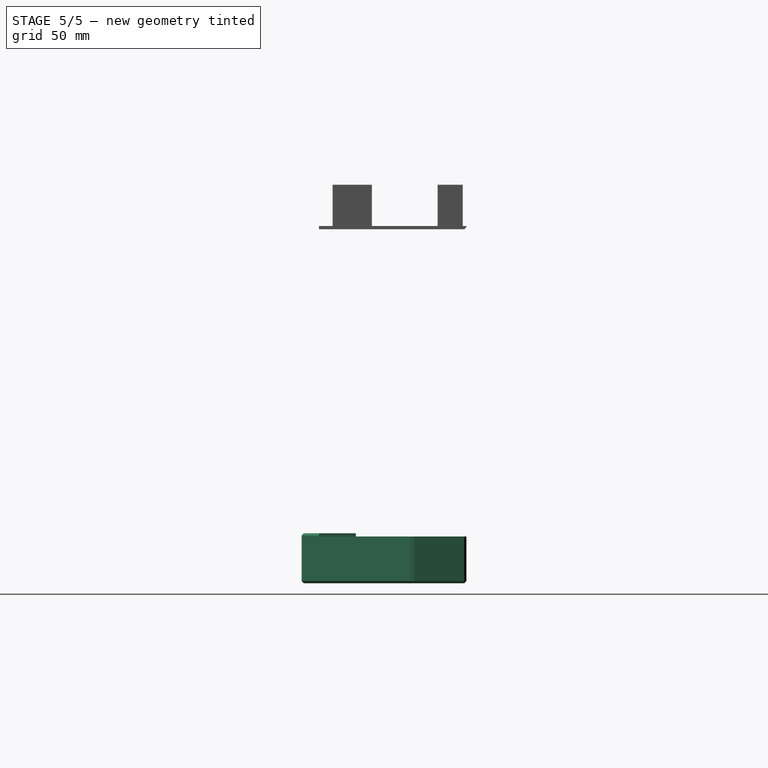
[diagram: stage 5 of 5 — right view after this stage's code; geometry added in this stage tinted green]
FEATURE [PartDesign::Chamfer] Chamfer001
  Angle = 45
  Base = -> Pad010 [Edge92,Edge196,Edge177,Edge178,Edge93,Edge176,Edge195,Edge118,Edge199,Edge194]
  BaseFeature = -> Pad010
  ChamferType = 0
  FlipDirection = false
  Size = 1
  Size2 = 1
  SupportTransform = false
  UseAllEdges = false
FEATURE [PartDesign::Chamfer] Chamfer002
  Angle = 45
  Base = -> Chamfer001 [Edge102,Edge120,Edge121]
  BaseFeature = -> Chamfer001
  ChamferType = 0
  FlipDirection = false
  Size = 1
  Size2 = 1
  SupportTransform = false
  UseAllEdges = false
FEATURE [PartDesign::Body] Body001  label="przykrywka"
  Group = -> [ShapeBinder,DatumPlane,Sketch009,Pad007,Sketch010,Pad008,Sketch011,Pocket002,ShapeBinder001,Sketch012,Pocket003,Chamfer003]
  Origin = -> Origin001
  Placement = pos=(0,0,-7) rot=(0,0,1;0rad)
  Tip = -> Chamfer003
FEATURE [Sketcher::SketchObject] Sketch014
  ExternalGeometry = -> [Chamfer002]
  FullyConstrained = false
  MapMode = 5
  Placement = pos=(0,0,0) rot=(1,0,0;3.14159rad)
  Support = -> [Chamfer002]
  sketch-geometry (6):
    g0: LineSegment StartX=122.892 StartY=-36.5496 StartZ=0 EndX=129.642 EndY=-36.5496 EndZ=0
    g1: LineSegment StartX=129.642 StartY=-36.5496 StartZ=0 EndX=129.868 EndY=-37.2242 EndZ=0
    g2: LineSegment StartX=129.868 StartY=-37.2242 StartZ=0 EndX=126.144 EndY=-39.5495 EndZ=0
    g3: LineSegment StartX=126.144 StartY=-39.5495 StartZ=0 EndX=124.127 EndY=-41.2574 EndZ=0
    g4: LineSegment StartX=124.127 StartY=-41.2574 StartZ=0 EndX=122.892 EndY=-43.0888 EndZ=0
    g5: LineSegment StartX=122.892 StartY=-43.0888 StartZ=0 EndX=122.892 EndY=-36.5496 EndZ=0
  constraints (9):
    c: Coincident(g-3,g0)
    c: Horizontal(g0)
    c: Coincident(g0,g1)
    c: Coincident(g1,g2)
    c: Coincident(g2,g3)
    c: Coincident(g3,g4)
    c: Coincident(g4,g5)
    c: Coincident(g5,g0)
    c: Vertical(g5)
FEATURE [PartDesign::Pad] Pad011
  BaseFeature = -> Chamfer002
  Direction = (0,0,-1)
  Length = 15
  Length2 = 10
  Profile = -> Sketch014
  ReferenceAxis = -> Sketch014 [N_Axis]
  Type = 0
FEATURE [PartDesign::Body] Body  label="puszka"
  Group = -> [Sketch,Pad,Sketch002,Pad001,Sketch003,Pad002,Sketch004,Pocket,Sketch005,Pad003,Pocket001,Sketch006,Pad004,Sketch007,Pad005,Chamfer,Sketch008,Pad006,Sketch013,Pad009,Pad010,Chamfer001,Chamfer002,Sketch014,Pad011]
  Origin = -> Origin
  Tip = -> Pad011
FEATURE [Part::Mirroring] Part__Mirroring  label="puszka (Mirror #1)"
  Base = (0,0,0)
  Normal = (0,0,1)
  Placement = pos=(0,0,-190) rot=(0,0,1;0rad)
  Source = -> Body
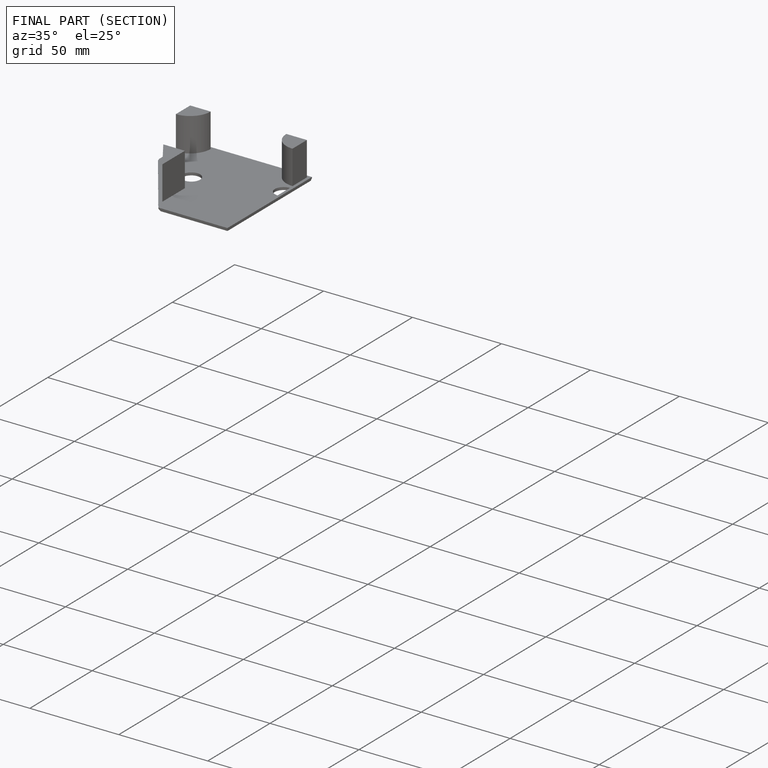
[diagram: finished part — half-section view (interior)]
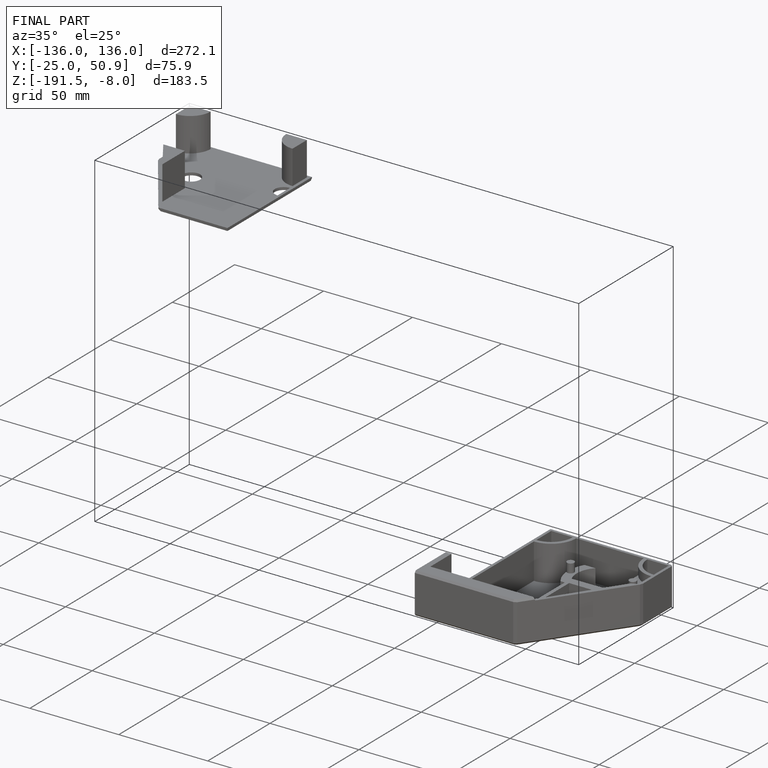
[diagram: finished part — iso view with bounding-box wireframe]
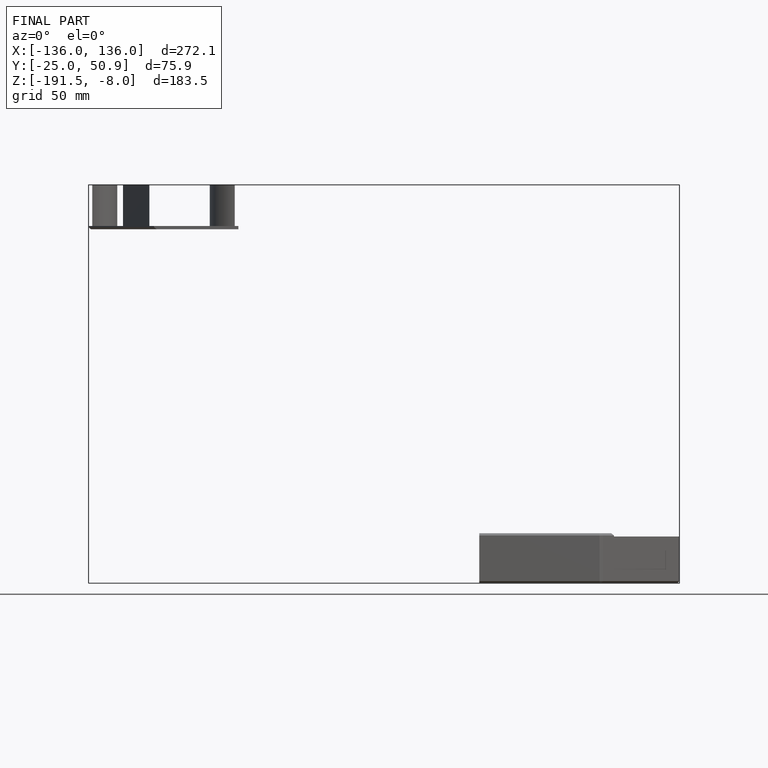
[diagram: finished part — front view with bounding-box wireframe]
